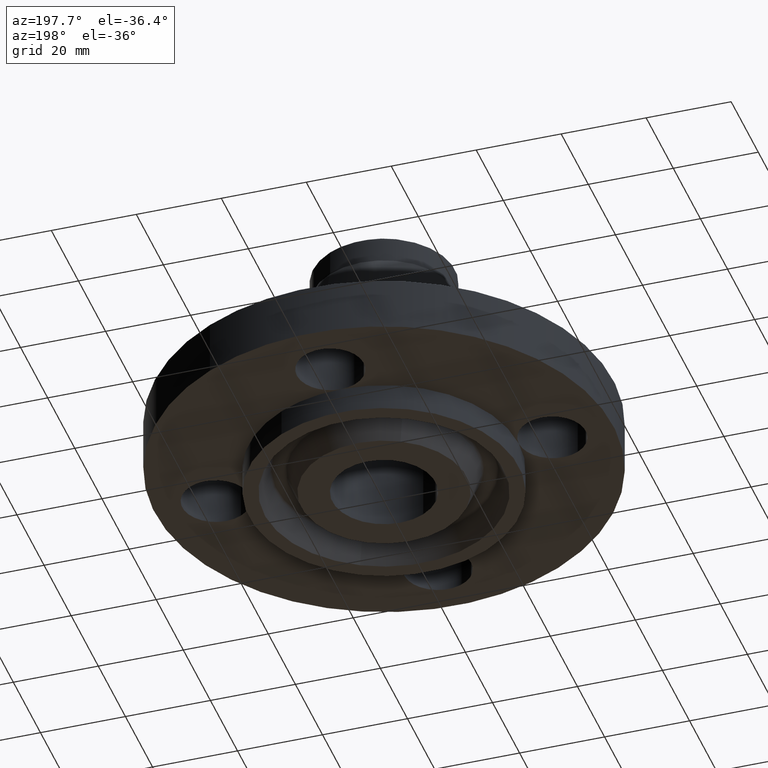
[diagram: clean part render]
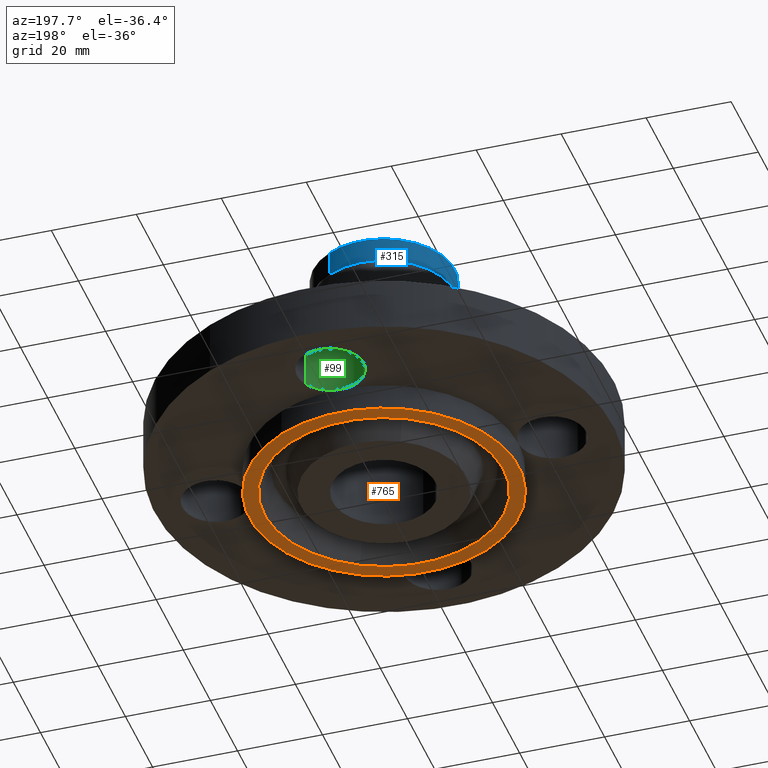
[diagram: same view with three faces highlighted in distinct colors, each labeled with its STEP entity id]
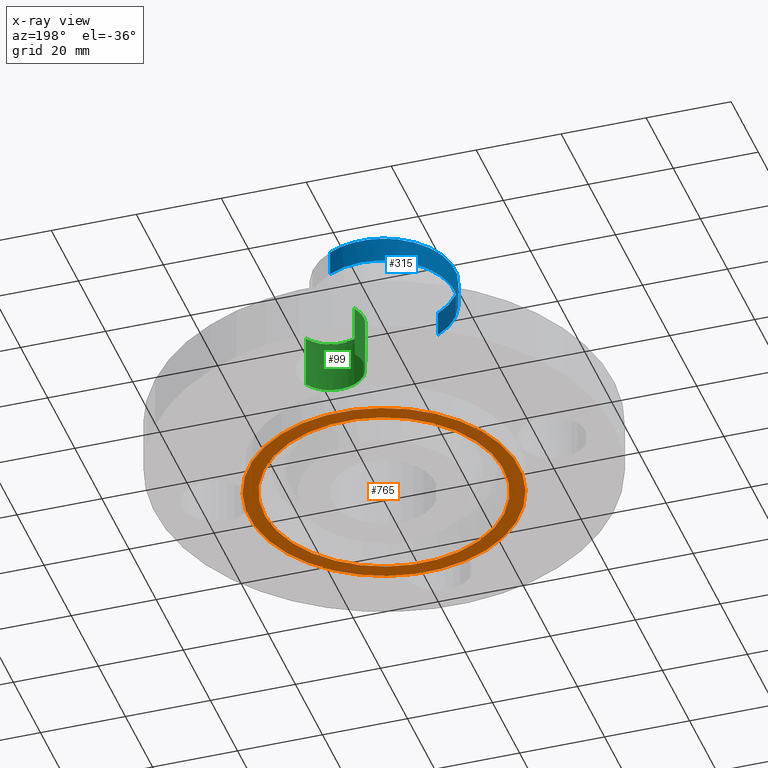
[diagram: x-ray of the same camera — body ghosted, the three highlighted faces saturated]
A machine part, auxiliary view with three faces highlighted in distinct colors.
The next image is the same camera in x-ray (body ghosted, the three faces saturated) — at least one of them is partly hidden behind the body in this view.
Their STEP definitions:

[orange] entity #765 — the highlighted planar face has unit normal (0, 0, -1).
#439=AXIS2_PLACEMENT_3D('Circle Axis2P3D',#437,#438,$) ;
#488=AXIS2_PLACEMENT_3D('Circle Axis2P3D',#486,#487,$) ;
#741=AXIS2_PLACEMENT_3D('Plane Axis2P3D',#738,#739,#740) ;
#749=AXIS2_PLACEMENT_3D('Circle Axis2P3D',#747,#748,$) ;
#758=AXIS2_PLACEMENT_3D('Circle Axis2P3D',#756,#757,$) ;
#437=CARTESIAN_POINT('Axis2P3D Location',(0.,0.,-0.250000000001)) ;
#441=CARTESIAN_POINT('Vertex',(-0.599281923258,-1.09697820237,-0.250000000001)) ;
#443=CARTESIAN_POINT('Vertex',(0.599281923258,1.09697820237,-0.250000000001)) ;
#486=CARTESIAN_POINT('Axis2P3D Location',(0.,0.,-0.250000000001)) ;
#738=CARTESIAN_POINT('Axis2P3D Location',(0.,0.478500000002,-0.250000000001)) ;
#747=CARTESIAN_POINT('Axis2P3D Location',(1.04902962957E-016,2.09805925913E-016,-0.250000000001)) ;
#751=CARTESIAN_POINT('Vertex',(0.531862706891,-0.973568154601,-0.250000000001)) ;
#753=CARTESIAN_POINT('Vertex',(-0.531862706891,0.973568154601,-0.250000000001)) ;
#756=CARTESIAN_POINT('Axis2P3D Location',(6.99353086378E-017,3.49676543189E-016,-0.250000000001)) ;
#438=DIRECTION('Axis2P3D Direction',(0.,0.,-0.0393700787402)) ;
#487=DIRECTION('Axis2P3D Direction',(0.,0.,-0.0393700787402)) ;
#739=DIRECTION('Axis2P3D Direction',(0.,0.,-0.0393700787402)) ;
#740=DIRECTION('Axis2P3D XDirection',(0.0393700787402,0.,0.)) ;
#748=DIRECTION('Axis2P3D Direction',(0.,0.,-0.0393700787402)) ;
#757=DIRECTION('Axis2P3D Direction',(0.,0.,-0.0393700787402)) ;
#744=ORIENTED_EDGE('',*,*,#445,.T.) ;
#745=ORIENTED_EDGE('',*,*,#490,.T.) ;
#762=ORIENTED_EDGE('',*,*,#755,.F.) ;
#763=ORIENTED_EDGE('',*,*,#760,.F.) ;
#764=FACE_BOUND('',#761,.T.) ;
#765=ADVANCED_FACE('PartBody',(#746,#764),#742,.T.) ;
#440=CIRCLE('generated circle',#439,1.25000000001) ;
#489=CIRCLE('generated circle',#488,1.25000000001) ;
#750=CIRCLE('generated circle',#749,1.109375) ;
#759=CIRCLE('generated circle',#758,1.109375) ;
#445=EDGE_CURVE('',#442,#444,#440,.T.) ;
#490=EDGE_CURVE('',#444,#442,#489,.T.) ;
#755=EDGE_CURVE('',#752,#754,#750,.T.) ;
#760=EDGE_CURVE('',#754,#752,#759,.T.) ;
#743=EDGE_LOOP('',(#744,#745)) ;
#761=EDGE_LOOP('',(#762,#763)) ;
#746=FACE_OUTER_BOUND('',#743,.T.) ;
#742=PLANE('',#741) ;
#442=VERTEX_POINT('',#441) ;
#444=VERTEX_POINT('',#443) ;
#752=VERTEX_POINT('',#751) ;
#754=VERTEX_POINT('',#753) ;

[blue] entity #315 — the highlighted cylindrical surface (partial cylindrical patch) has radius 16.7005 mm, axis along (0, 0, -1).
#247=AXIS2_PLACEMENT_3D('Circle Axis2P3D',#245,#246,$) ;
#260=AXIS2_PLACEMENT_3D('Cylinder Axis2P3D',#257,#258,#259) ;
#298=AXIS2_PLACEMENT_3D('Circle Axis2P3D',#296,#297,$) ;
#305=AXIS2_PLACEMENT_3D('Circle Axis2P3D',#303,#304,$) ;
#223=CARTESIAN_POINT('Vertex',(0.315222291634,0.577010534445,1.80684744459)) ;
#230=CARTESIAN_POINT('Vertex',(-0.315222291634,-0.577010534445,1.80684744459)) ;
#245=CARTESIAN_POINT('Axis2P3D Location',(0.,0.,1.80684744459)) ;
#257=CARTESIAN_POINT('Axis2P3D Location',(0.,0.,0.935000000004)) ;
#262=CARTESIAN_POINT('Line Origine',(-0.315222291634,-0.577010534445,1.92495768081)) ;
#266=CARTESIAN_POINT('Vertex',(-0.315222291634,-0.577010534445,2.04306791703)) ;
#269=CARTESIAN_POINT('Line Origine',(0.315222291634,0.577010534445,1.92495768081)) ;
#273=CARTESIAN_POINT('Vertex',(0.315222291634,0.577010534445,2.04306791703)) ;
#296=CARTESIAN_POINT('Axis2P3D Location',(0.,0.,2.04306791703)) ;
#300=CARTESIAN_POINT('Vertex',(-0.315222291634,0.577010534445,2.04306791703)) ;
#303=CARTESIAN_POINT('Axis2P3D Location',(0.,0.,2.04306791703)) ;
#246=DIRECTION('Axis2P3D Direction',(0.,0.,-0.0393700787402)) ;
#258=DIRECTION('Axis2P3D Direction',(0.,0.,-0.0393700787402)) ;
#259=DIRECTION('Axis2P3D XDirection',(-0.0188750212049,-0.0345504945626,0.)) ;
#263=DIRECTION('Vector Direction',(0.,0.,-0.0393700787402)) ;
#270=DIRECTION('Vector Direction',(0.,0.,-0.0393700787402)) ;
#297=DIRECTION('Axis2P3D Direction',(0.,0.,-0.0393700787402)) ;
#304=DIRECTION('Axis2P3D Direction',(0.,0.,-0.0393700787402)) ;
#264=VECTOR('Line Direction',#263,0.0393700787402) ;
#271=VECTOR('Line Direction',#270,0.0393700787402) ;
#309=ORIENTED_EDGE('',*,*,#275,.F.) ;
#310=ORIENTED_EDGE('',*,*,#249,.F.) ;
#311=ORIENTED_EDGE('',*,*,#268,.T.) ;
#312=ORIENTED_EDGE('',*,*,#302,.F.) ;
#313=ORIENTED_EDGE('',*,*,#307,.T.) ;
#315=ADVANCED_FACE('PartBody',(#314),#261,.T.) ;
#248=CIRCLE('generated circle',#247,0.657500000003) ;
#299=CIRCLE('generated circle',#298,0.657500000003) ;
#306=CIRCLE('generated circle',#305,0.657500000003) ;
#261=CYLINDRICAL_SURFACE('generated cylinder',#260,0.657500000003) ;
#249=EDGE_CURVE('',#231,#224,#248,.T.) ;
#268=EDGE_CURVE('',#231,#267,#265,.F.) ;
#275=EDGE_CURVE('',#224,#274,#272,.F.) ;
#302=EDGE_CURVE('',#301,#267,#299,.F.) ;
#307=EDGE_CURVE('',#301,#274,#306,.T.) ;
#308=EDGE_LOOP('',(#309,#310,#311,#312,#313)) ;
#314=FACE_OUTER_BOUND('',#308,.T.) ;
#265=LINE('Line',#262,#264) ;
#272=LINE('Line',#269,#271) ;
#224=VERTEX_POINT('',#223) ;
#231=VERTEX_POINT('',#230) ;
#267=VERTEX_POINT('',#266) ;
#274=VERTEX_POINT('',#273) ;
#301=VERTEX_POINT('',#300) ;

[green] entity #99 — the highlighted cylindrical surface (edge-blend (fillet) strip) has radius 7.874 mm, axis along (0, -0, -1).
#38=AXIS2_PLACEMENT_3D('Cylinder Axis2P3D',#35,#36,#37) ;
#77=AXIS2_PLACEMENT_3D('Circle Axis2P3D',#75,#76,$) ;
#84=AXIS2_PLACEMENT_3D('Circle Axis2P3D',#82,#83,$) ;
#89=AXIS2_PLACEMENT_3D('Circle Axis2P3D',#87,#88,$) ;
#35=CARTESIAN_POINT('Axis2P3D Location',(0.,1.56000000001,0.496062992128)) ;
#40=CARTESIAN_POINT('Line Origine',(-0.272050594187,1.70862191697,0.250000000001)) ;
#44=CARTESIAN_POINT('Vertex',(-0.272050594187,1.70862191697,0.)) ;
#46=CARTESIAN_POINT('Vertex',(-0.272050594187,1.70862191697,0.500000000002)) ;
#53=CARTESIAN_POINT('Vertex',(0.272050594187,1.41137808304,0.)) ;
#56=CARTESIAN_POINT('Line Origine',(0.272050594187,1.41137808304,0.250000000001)) ;
#60=CARTESIAN_POINT('Vertex',(0.272050594187,1.41137808304,0.500000000002)) ;
#75=CARTESIAN_POINT('Axis2P3D Location',(0.,1.56000000001,0.)) ;
#79=CARTESIAN_POINT('Vertex',(3.90510912389E-015,1.25000000001,1.39870617276E-016)) ;
#82=CARTESIAN_POINT('Axis2P3D Location',(0.,1.56000000001,0.)) ;
#87=CARTESIAN_POINT('Axis2P3D Location',(0.,1.56000000001,0.500000000002)) ;
#36=DIRECTION('Axis2P3D Direction',(0.,-0.,-0.0393700787402)) ;
#37=DIRECTION('Axis2P3D XDirection',(0.0345504945626,-0.0188750212049,0.)) ;
#41=DIRECTION('Vector Direction',(0.,0.,-0.0393700787402)) ;
#57=DIRECTION('Vector Direction',(0.,0.,-0.0393700787402)) ;
#76=DIRECTION('Axis2P3D Direction',(0.,-0.,-0.0393700787402)) ;
#83=DIRECTION('Axis2P3D Direction',(0.,-0.,-0.0393700787402)) ;
#88=DIRECTION('Axis2P3D Direction',(0.,-0.,-0.0393700787402)) ;
#42=VECTOR('Line Direction',#41,0.0393700787402) ;
#58=VECTOR('Line Direction',#57,0.0393700787402) ;
#93=ORIENTED_EDGE('',*,*,#62,.F.) ;
#94=ORIENTED_EDGE('',*,*,#81,.T.) ;
#95=ORIENTED_EDGE('',*,*,#86,.T.) ;
#96=ORIENTED_EDGE('',*,*,#48,.T.) ;
#97=ORIENTED_EDGE('',*,*,#91,.F.) ;
#99=ADVANCED_FACE('PartBody',(#98),#39,.F.) ;
#78=CIRCLE('generated circle',#77,0.310000000001) ;
#85=CIRCLE('generated circle',#84,0.310000000001) ;
#90=CIRCLE('generated circle',#89,0.310000000001) ;
#39=CYLINDRICAL_SURFACE('generated cylinder',#38,0.310000000001) ;
#48=EDGE_CURVE('',#45,#47,#43,.F.) ;
#62=EDGE_CURVE('',#54,#61,#59,.F.) ;
#81=EDGE_CURVE('',#54,#80,#78,.T.) ;
#86=EDGE_CURVE('',#80,#45,#85,.T.) ;
#91=EDGE_CURVE('',#61,#47,#90,.T.) ;
#92=EDGE_LOOP('',(#93,#94,#95,#96,#97)) ;
#98=FACE_OUTER_BOUND('',#92,.T.) ;
#43=LINE('Line',#40,#42) ;
#59=LINE('Line',#56,#58) ;
#45=VERTEX_POINT('',#44) ;
#47=VERTEX_POINT('',#46) ;
#54=VERTEX_POINT('',#53) ;
#61=VERTEX_POINT('',#60) ;
#80=VERTEX_POINT('',#79) ;